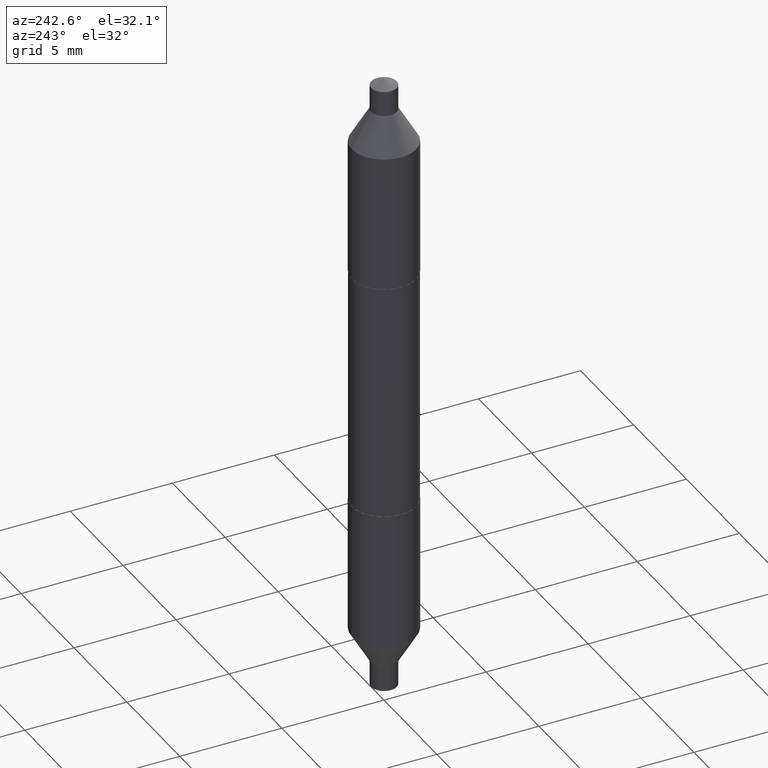
[diagram: clean part render]
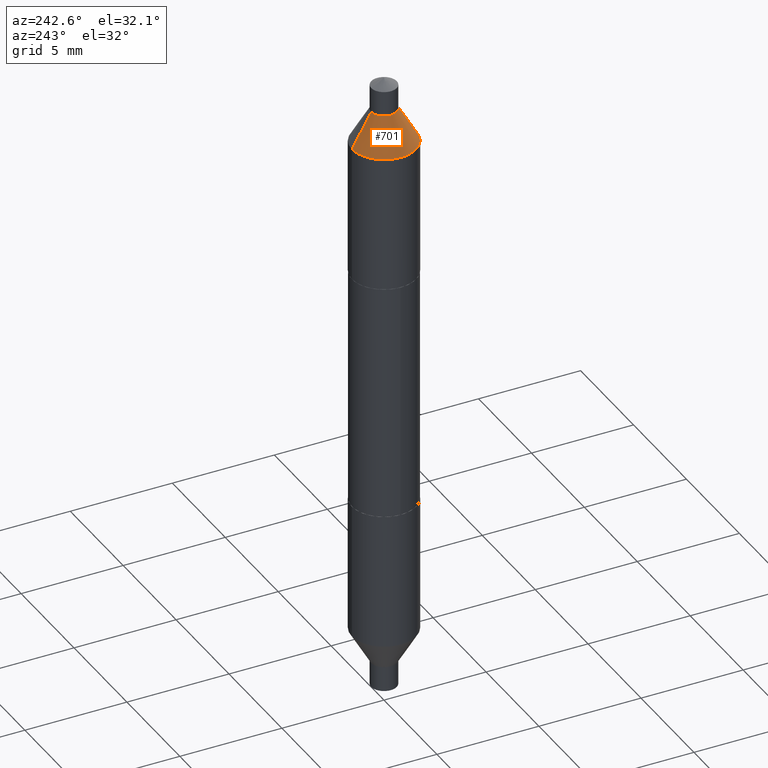
[diagram: same view with one face highlighted and labeled with its STEP entity id]
A machine part, auxiliary view. The second image highlights one B-rep face of the part: STEP entity #701.
In plain terms, the highlighted conical surface has half-angle 30 deg.
Its self-contained STEP definition (entity closure, byte-faithful):
#28 = DIRECTION ( 'NONE',  ( -6.982962677686265922E-15, -1.000000000000000000, 2.776268286244171659E-15 ) ) ;
#57 = CIRCLE ( 'NONE', #524, 0.02459999999999998646 ) ;
#60 = ORIENTED_EDGE ( 'NONE', *, *, #492, .T. ) ;
#114 = CARTESIAN_POINT ( 'NONE',  ( -4.329436860165604459E-16, -0.06199999999999827177, 0.4922212997969231396 ) ) ;
#152 = VECTOR ( 'NONE', #185, 39.37007874015748143 ) ;
#185 = DIRECTION ( 'NONE',  ( -3.491481338843073402E-15, -0.4999999999999974465, -0.8660254037844400399 ) ) ;
#266 = ORIENTED_EDGE ( 'NONE', *, *, #664, .F. ) ;
#290 = CIRCLE ( 'NONE', #558, 0.06200000000000000649 ) ;
#311 = CONICAL_SURFACE ( 'NONE', #702, 0.02459999999999998646, 0.5235987755982924874 ) ;
#327 = CARTESIAN_POINT ( 'NONE',  ( 4.253508758618293946E-16, 0.06200000000000174122, 0.4922212997969227510 ) ) ;
#333 = DIRECTION ( 'NONE',  ( -6.982962677686265922E-15, -1.000000000000000000, 2.776268286244171659E-15 ) ) ;
#346 = VECTOR ( 'NONE', #477, 39.37007874015748854 ) ;
#361 = FACE_OUTER_BOUND ( 'NONE', #657, .T. ) ;
#364 = CARTESIAN_POINT ( 'NONE',  ( 1.687682507451654546E-16, 0.02460000000000194670, 0.5569999999999999396 ) ) ;
#383 = VERTEX_POINT ( 'NONE', #364 ) ;
#386 = VERTEX_POINT ( 'NONE', #421 ) ;
#391 = CARTESIAN_POINT ( 'NONE',  ( -1.352804812493065762E-29, 1.958103755846338219E-15, 0.5569999999999999396 ) ) ;
#394 = ORIENTED_EDGE ( 'NONE', *, *, #565, .F. ) ;
#397 = DIRECTION ( 'NONE',  ( -2.416963263212490311E-29, 3.532302898814723965E-15, 1.000000000000000000 ) ) ;
#421 = CARTESIAN_POINT ( 'NONE',  ( -1.717808818710955741E-16, -0.02459999999999802969, 0.5570000000000000506 ) ) ;
#439 = LINE ( 'NONE', #535, #346 ) ;
#448 = VERTEX_POINT ( 'NONE', #327 ) ;
#455 = LINE ( 'NONE', #666, #152 ) ;
#477 = DIRECTION ( 'NONE',  ( 3.430248998885747243E-15, 0.4999999999999913403, -0.8660254037844434816 ) ) ;
#479 = EDGE_CURVE ( 'NONE', #383, #448, #439, .T. ) ;
#485 = DIRECTION ( 'NONE',  ( -2.416963263212490311E-29, 3.532302898814723965E-15, 1.000000000000000000 ) ) ;
#492 = EDGE_CURVE ( 'NONE', #448, #551, #290, .T. ) ;
#524 = AXIS2_PLACEMENT_3D ( 'NONE', #391, #397, #333 ) ;
#535 = CARTESIAN_POINT ( 'NONE',  ( 1.687682507451660463E-16, 0.02460000000000194670, 0.5569999999999999396 ) ) ;
#551 = VERTEX_POINT ( 'NONE', #114 ) ;
#558 = AXIS2_PLACEMENT_3D ( 'NONE', #635, #485, #698 ) ;
#565 = EDGE_CURVE ( 'NONE', #383, #386, #57, .T. ) ;
#568 = CARTESIAN_POINT ( 'NONE',  ( -1.352804812493065762E-29, 1.958103755846338219E-15, 0.5569999999999999396 ) ) ;
#590 = ORIENTED_EDGE ( 'NONE', *, *, #479, .T. ) ;
#618 = DIRECTION ( 'NONE',  ( 2.416963263212490311E-29, -3.532302898814723965E-15, -1.000000000000000000 ) ) ;
#635 = CARTESIAN_POINT ( 'NONE',  ( -1.196237073863572951E-29, 1.729285765337559218E-15, 0.4922212997969229731 ) ) ;
#657 = EDGE_LOOP ( 'NONE', ( #394, #590, #60, #266 ) ) ;
#664 = EDGE_CURVE ( 'NONE', #386, #551, #455, .T. ) ;
#666 = CARTESIAN_POINT ( 'NONE',  ( -1.717808818710955741E-16, -0.02459999999999802969, 0.5570000000000000506 ) ) ;
#698 = DIRECTION ( 'NONE',  ( -6.982962677686265922E-15, -1.000000000000000000, 3.304654831045479413E-15 ) ) ;
#701 = ADVANCED_FACE ( 'NONE', ( #361 ), #311, .T. ) ;
#702 = AXIS2_PLACEMENT_3D ( 'NONE', #568, #618, #28 ) ;